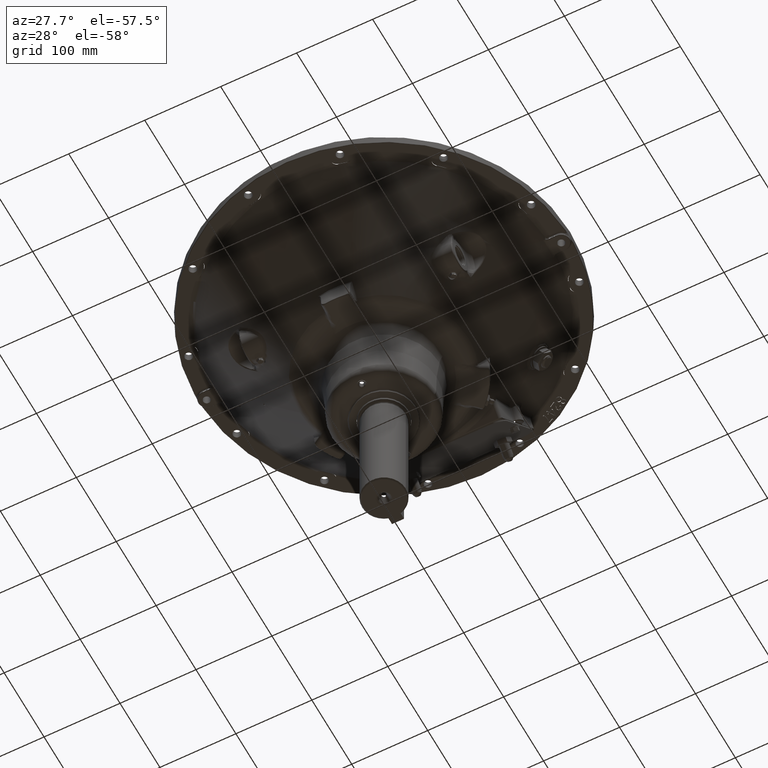
[diagram: clean part render]
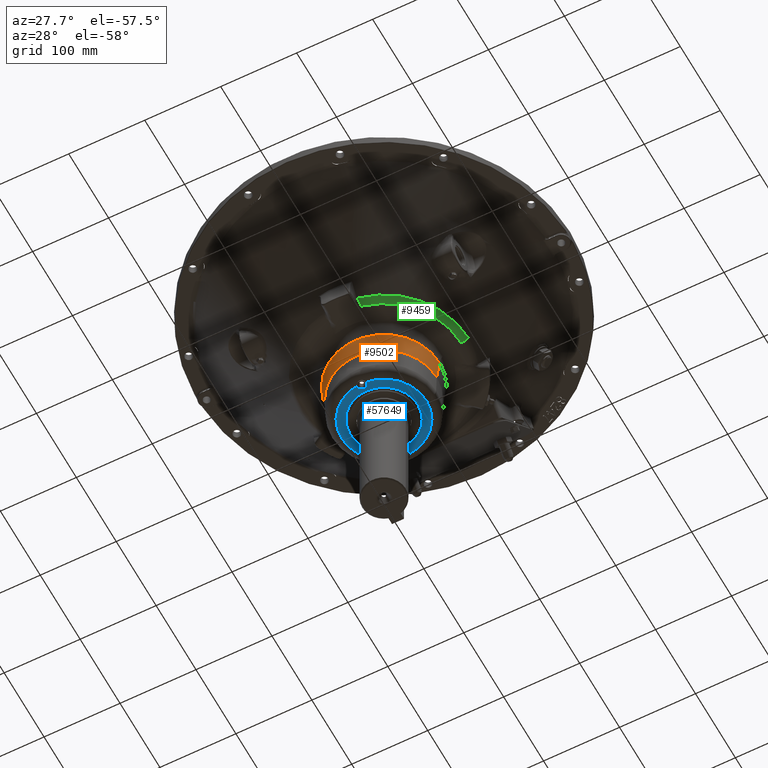
[diagram: same view with three faces highlighted in distinct colors, each labeled with its STEP entity id]
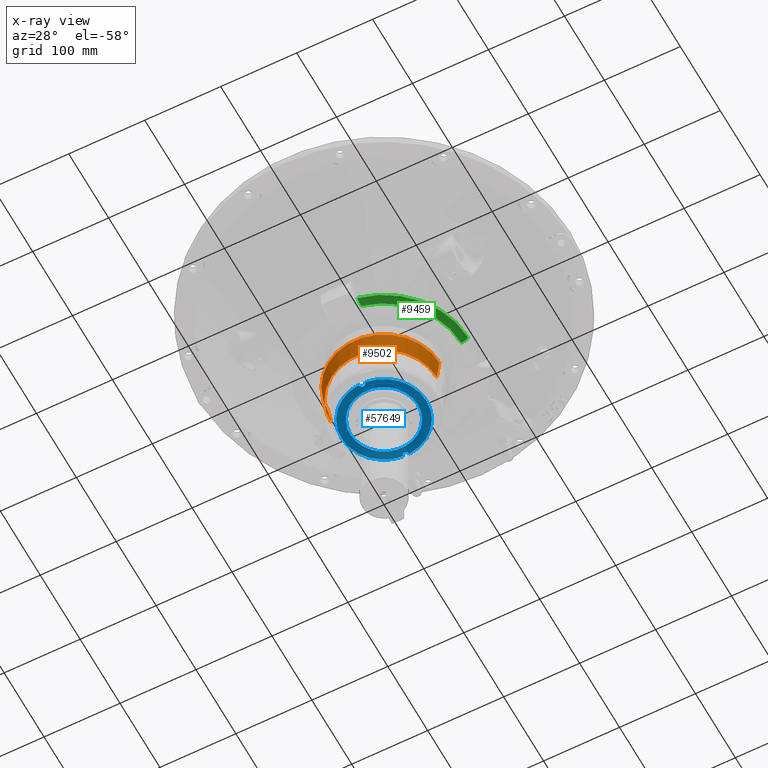
[diagram: x-ray of the same camera — body ghosted, the three highlighted faces saturated]
A machine part, auxiliary view with three faces highlighted in distinct colors.
The next image is the same camera in x-ray (body ghosted, the three faces saturated) — at least one of them is partly hidden behind the body in this view.
Their STEP definitions:

[orange] entity #9502 — the highlighted conical surface has half-angle 7.326 deg.
#950 = CIRCLE ( 'NONE', #20918, 73.02500000000003400 ) ;
#4420 = VECTOR ( 'NONE', #59945, 1000.000000000000000 ) ;
#4422 = LINE ( 'NONE', #59942, #4420 ) ;
#4427 = LINE ( 'NONE', #60132, #4429 ) ;
#4429 = VECTOR ( 'NONE', #60137, 1000.000000000000000 ) ;
#4436 = CIRCLE ( 'NONE', #19885, 69.38452087200465700 ) ;
#9251 = CONICAL_SURFACE ( 'NONE', #53688, 69.34332391276757300, 0.1278548410188706200 ) ;
#9335 = FACE_OUTER_BOUND ( 'NONE', #41876, .T. ) ;
#9502 = ADVANCED_FACE ( 'NONE', ( #9335 ), #9251, .T. ) ;
#14308 = ORIENTED_EDGE ( 'NONE', *, *, #64652, .F. ) ;
#14438 = ORIENTED_EDGE ( 'NONE', *, *, #65061, .T. ) ;
#14536 = ORIENTED_EDGE ( 'NONE', *, *, #65054, .F. ) ;
#14588 = ORIENTED_EDGE ( 'NONE', *, *, #65058, .T. ) ;
#19885 = AXIS2_PLACEMENT_3D ( 'NONE', #60155, #60159, #60161 ) ;
#20918 = AXIS2_PLACEMENT_3D ( 'NONE', #72653, #72452, #71545 ) ;
#21818 = VERTEX_POINT ( 'NONE', #26635 ) ;
#21820 = VERTEX_POINT ( 'NONE', #26637 ) ;
#21821 = VERTEX_POINT ( 'NONE', #26638 ) ;
#22159 = VERTEX_POINT ( 'NONE', #26225 ) ;
#26225 = CARTESIAN_POINT ( 'NONE',  ( -73.02500000000004800, 2.208934655888544500E-014, -158.6863275827594700 ) ) ;
#26635 = CARTESIAN_POINT ( 'NONE',  ( 69.38452087200464300, 3.001860500194114000E-014, -187.0045410046340900 ) ) ;
#26637 = CARTESIAN_POINT ( 'NONE',  ( -69.38452087200467100, 2.696091424786581900E-014, -187.0045410046340900 ) ) ;
#26638 = CARTESIAN_POINT ( 'NONE',  ( 73.02499999999999100, 2.530746876409969100E-014, -158.6863275827594700 ) ) ;
#41876 = EDGE_LOOP ( 'NONE', ( #14536, #14438, #14588, #14308 ) ) ;
#53688 = AXIS2_PLACEMENT_3D ( 'NONE', #66854, #66838, #66499 ) ;
#59942 = CARTESIAN_POINT ( 'NONE',  ( -69.34332391276760200, 2.353479806802298000E-014, -187.3250000000000700 ) ) ;
#59945 = DIRECTION ( 'NONE',  ( -0.1275067880803362500, -5.006004735048425700E-017, 0.9918376979090057800 ) ) ;
#60132 = CARTESIAN_POINT ( 'NONE',  ( 69.34332391276754500, 2.659067332262128600E-014, -187.3250000000000700 ) ) ;
#60137 = DIRECTION ( 'NONE',  ( 0.1275067880803361900, -4.444097955128019200E-017, 0.9918376979090057800 ) ) ;
#60155 = CARTESIAN_POINT ( 'NONE',  ( 0.0000000000000000000, 6.938893903907228400E-015, -187.0045410046340900 ) ) ;
#60159 = DIRECTION ( 'NONE',  ( -2.775557561562890100E-017, -5.551115123125780200E-017, 1.000000000000000000 ) ) ;
#60161 = DIRECTION ( 'NONE',  ( 1.000000000000000000, 8.326672684688666700E-017, 0.0000000000000000000 ) ) ;
#64652 = EDGE_CURVE ( 'NONE', #22159, #21821, #950, .T. ) ;
#65054 = EDGE_CURVE ( 'NONE', #21820, #22159, #4422, .T. ) ;
#65058 = EDGE_CURVE ( 'NONE', #21818, #21821, #4427, .T. ) ;
#65061 = EDGE_CURVE ( 'NONE', #21820, #21818, #4436, .T. ) ;
#66499 = DIRECTION ( 'NONE',  ( 1.000000000000000000, 8.326672684688666700E-017, 0.0000000000000000000 ) ) ;
#66838 = DIRECTION ( 'NONE',  ( -2.775557561562890100E-017, -5.551115123125780200E-017, 1.000000000000000000 ) ) ;
#66854 = CARTESIAN_POINT ( 'NONE',  ( -2.775557561562891400E-014, 2.081668171172168500E-014, -187.3250000000000700 ) ) ;
#71545 = DIRECTION ( 'NONE',  ( 1.000000000000000000, 8.326672684688667900E-017, 0.0000000000000000000 ) ) ;
#72452 = DIRECTION ( 'NONE',  ( -2.775557561562890100E-017, -5.551115123125780200E-017, 1.000000000000000000 ) ) ;
#72653 = CARTESIAN_POINT ( 'NONE',  ( 0.0000000000000000000, 0.0000000000000000000, -158.6863275827594700 ) ) ;

[blue] entity #57649 — the highlighted planar face has unit normal (0, -0, 1).
#4485 = CIRCLE ( 'NONE', #19805, 55.89070773929449100 ) ;
#4490 = CIRCLE ( 'NONE', #19798, 55.89070773929449100 ) ;
#4542 = CIRCLE ( 'NONE', #19719, 44.45108836615853700 ) ;
#4548 = CIRCLE ( 'NONE', #19708, 55.89070773929449100 ) ;
#13229 = CIRCLE ( 'NONE', #21333, 44.45108836615853700 ) ;
#13245 = CIRCLE ( 'NONE', #21331, 55.89070773929449100 ) ;
#13261 = CIRCLE ( 'NONE', #21313, 3.968749999999997300 ) ;
#13301 = CIRCLE ( 'NONE', #21296, 3.968749999999997300 ) ;
#13547 = ORIENTED_EDGE ( 'NONE', *, *, #65142, .F. ) ;
#13599 = ORIENTED_EDGE ( 'NONE', *, *, #64328, .T. ) ;
#13743 = ORIENTED_EDGE ( 'NONE', *, *, #65232, .T. ) ;
#13744 = ORIENTED_EDGE ( 'NONE', *, *, #65237, .F. ) ;
#14157 = ORIENTED_EDGE ( 'NONE', *, *, #64334, .F. ) ;
#14174 = ORIENTED_EDGE ( 'NONE', *, *, #65138, .F. ) ;
#14209 = ORIENTED_EDGE ( 'NONE', *, *, #64390, .F. ) ;
#14246 = ORIENTED_EDGE ( 'NONE', *, *, #64351, .F. ) ;
#19708 = AXIS2_PLACEMENT_3D ( 'NONE', #37574, #37557, #37559 ) ;
#19719 = AXIS2_PLACEMENT_3D ( 'NONE', #37453, #37452, #37451 ) ;
#19798 = AXIS2_PLACEMENT_3D ( 'NONE', #38821, #38835, #38834 ) ;
#19805 = AXIS2_PLACEMENT_3D ( 'NONE', #38784, #38808, #38811 ) ;
#21296 = AXIS2_PLACEMENT_3D ( 'NONE', #62956, #62924, #62922 ) ;
#21313 = AXIS2_PLACEMENT_3D ( 'NONE', #63177, #63370, #63371 ) ;
#21331 = AXIS2_PLACEMENT_3D ( 'NONE', #63238, #63278, #63314 ) ;
#21333 = AXIS2_PLACEMENT_3D ( 'NONE', #63305, #63354, #63435 ) ;
#21687 = VERTEX_POINT ( 'NONE', #25647 ) ;
#21691 = VERTEX_POINT ( 'NONE', #25645 ) ;
#21826 = VERTEX_POINT ( 'NONE', #26553 ) ;
#21827 = VERTEX_POINT ( 'NONE', #26554 ) ;
#21847 = VERTEX_POINT ( 'NONE', #26516 ) ;
#21848 = VERTEX_POINT ( 'NONE', #26517 ) ;
#21852 = VERTEX_POINT ( 'NONE', #26525 ) ;
#22172 = VERTEX_POINT ( 'NONE', #26235 ) ;
#23610 = AXIS2_PLACEMENT_3D ( 'NONE', #28814, #29141, #29167 ) ;
#25645 = CARTESIAN_POINT ( 'NONE',  ( 3.964321417004007300, -55.74993602957687200, -228.6000000000000200 ) ) ;
#25647 = CARTESIAN_POINT ( 'NONE',  ( -3.964321417004007300, -55.74993602957691500, -228.6000000000000800 ) ) ;
#26235 = CARTESIAN_POINT ( 'NONE',  ( 44.45108836615852300, -1.382218603189557500E-014, -228.6000000000000800 ) ) ;
#26516 = CARTESIAN_POINT ( 'NONE',  ( 55.89070773929442700, -1.394772006164149300E-015, -228.6000000000000200 ) ) ;
#26517 = CARTESIAN_POINT ( 'NONE',  ( -55.89070773929448400, -4.137547782321696500E-015, -228.6000000000000200 ) ) ;
#26525 = CARTESIAN_POINT ( 'NONE',  ( -3.964321417003979800, 55.74993602957687200, -228.6000000000000500 ) ) ;
#26553 = CARTESIAN_POINT ( 'NONE',  ( -44.45108836615855100, -1.578109098933584000E-014, -228.6000000000001100 ) ) ;
#26554 = CARTESIAN_POINT ( 'NONE',  ( 3.964321417004007300, 55.74993602957687200, -228.6000000000000800 ) ) ;
#28814 = CARTESIAN_POINT ( 'NONE',  ( -2.775557561562891400E-014, 55.89070773929448400, -228.6000000000000500 ) ) ;
#28815 = PLANE ( 'NONE',  #23610 ) ;
#29141 = DIRECTION ( 'NONE',  ( 4.622231866529360600E-033, -5.551115123125780200E-017, 1.000000000000000000 ) ) ;
#29167 = DIRECTION ( 'NONE',  ( 1.000000000000000000, 8.326672684688667900E-017, 0.0000000000000000000 ) ) ;
#37451 = DIRECTION ( 'NONE',  ( 1.000000000000000000, 8.326672684688664200E-017, 0.0000000000000000000 ) ) ;
#37452 = DIRECTION ( 'NONE',  ( -2.775557561562890100E-017, -5.551115123125780200E-017, 1.000000000000000000 ) ) ;
#37453 = CARTESIAN_POINT ( 'NONE',  ( -2.775557561562891400E-014, 2.081668171172168500E-014, -228.6000000000000800 ) ) ;
#37557 = DIRECTION ( 'NONE',  ( -2.775557561562890100E-017, -5.551115123125780200E-017, 1.000000000000000000 ) ) ;
#37559 = DIRECTION ( 'NONE',  ( 1.000000000000000000, 8.326672684688675300E-017, 0.0000000000000000000 ) ) ;
#37574 = CARTESIAN_POINT ( 'NONE',  ( -2.775557561562891400E-014, 2.428612866367529900E-014, -228.6000000000000200 ) ) ;
#38784 = CARTESIAN_POINT ( 'NONE',  ( -2.775557561562891400E-014, 2.428612866367529900E-014, -228.6000000000000200 ) ) ;
#38808 = DIRECTION ( 'NONE',  ( -2.775557561562890100E-017, -5.551115123125780200E-017, 1.000000000000000000 ) ) ;
#38811 = DIRECTION ( 'NONE',  ( 1.000000000000000000, 8.326672684688675300E-017, 0.0000000000000000000 ) ) ;
#38821 = CARTESIAN_POINT ( 'NONE',  ( -2.775557561562891400E-014, 2.428612866367529900E-014, -228.6000000000000200 ) ) ;
#38834 = DIRECTION ( 'NONE',  ( 1.000000000000000000, 8.326672684688675300E-017, 0.0000000000000000000 ) ) ;
#38835 = DIRECTION ( 'NONE',  ( -2.775557561562890100E-017, -5.551115123125780200E-017, 1.000000000000000000 ) ) ;
#41882 = EDGE_LOOP ( 'NONE', ( #13744, #14209, #14174, #14157, #14246, #13547 ) ) ;
#41905 = EDGE_LOOP ( 'NONE', ( #13599, #13743 ) ) ;
#57649 = ADVANCED_FACE ( 'NONE', ( #67943, #68187 ), #28815, .F. ) ;
#62922 = DIRECTION ( 'NONE',  ( -1.000000000000000000, 0.0000000000000000000, 0.0000000000000000000 ) ) ;
#62924 = DIRECTION ( 'NONE',  ( 2.775557561562890100E-017, 5.551115123125780200E-017, -1.000000000000000000 ) ) ;
#62956 = CARTESIAN_POINT ( 'NONE',  ( 0.0000000000000000000, 55.56250000000000700, -228.6000000000000800 ) ) ;
#63177 = CARTESIAN_POINT ( 'NONE',  ( -2.775557561562891400E-014, -55.56250000000004300, -228.6000000000000800 ) ) ;
#63238 = CARTESIAN_POINT ( 'NONE',  ( -2.775557561562891400E-014, 2.428612866367529900E-014, -228.6000000000000200 ) ) ;
#63278 = DIRECTION ( 'NONE',  ( -2.775557561562890100E-017, -5.551115123125780200E-017, 1.000000000000000000 ) ) ;
#63305 = CARTESIAN_POINT ( 'NONE',  ( -2.775557561562891400E-014, 2.081668171172168500E-014, -228.6000000000000800 ) ) ;
#63314 = DIRECTION ( 'NONE',  ( 1.000000000000000000, 8.326672684688675300E-017, 0.0000000000000000000 ) ) ;
#63354 = DIRECTION ( 'NONE',  ( -2.775557561562890100E-017, -5.551115123125780200E-017, 1.000000000000000000 ) ) ;
#63370 = DIRECTION ( 'NONE',  ( 2.775557561562890100E-017, 5.551115123125780200E-017, -1.000000000000000000 ) ) ;
#63371 = DIRECTION ( 'NONE',  ( -1.000000000000000000, 0.0000000000000000000, 0.0000000000000000000 ) ) ;
#63435 = DIRECTION ( 'NONE',  ( 1.000000000000000000, 8.326672684688664200E-017, 0.0000000000000000000 ) ) ;
#64328 = EDGE_CURVE ( 'NONE', #22172, #21826, #13229, .T. ) ;
#64334 = EDGE_CURVE ( 'NONE', #21691, #21847, #13245, .T. ) ;
#64351 = EDGE_CURVE ( 'NONE', #21687, #21691, #13261, .T. ) ;
#64390 = EDGE_CURVE ( 'NONE', #21827, #21852, #13301, .T. ) ;
#65138 = EDGE_CURVE ( 'NONE', #21847, #21827, #4485, .T. ) ;
#65142 = EDGE_CURVE ( 'NONE', #21848, #21687, #4490, .T. ) ;
#65232 = EDGE_CURVE ( 'NONE', #21826, #22172, #4542, .T. ) ;
#65237 = EDGE_CURVE ( 'NONE', #21852, #21848, #4548, .T. ) ;
#67943 = FACE_BOUND ( 'NONE', #41905, .T. ) ;
#68187 = FACE_OUTER_BOUND ( 'NONE', #41882, .T. ) ;

[green] entity #9459 — the highlighted toroidal blend (fillet) surface has major radius 101.56 mm and minor (blend) radius 12.7 mm.
#4368 = CIRCLE ( 'NONE', #19988, 110.9233195292227400 ) ;
#4439 = CIRCLE ( 'NONE', #19867, 101.5598973517341500 ) ;
#9459 = ADVANCED_FACE ( 'NONE', ( #56925 ), #56931, .T. ) ;
#13280 = CIRCLE ( 'NONE', #21301, 12.69999999999998900 ) ;
#14778 = ORIENTED_EDGE ( 'NONE', *, *, #64371, .T. ) ;
#14786 = ORIENTED_EDGE ( 'NONE', *, *, #65064, .T. ) ;
#15364 = DIRECTION ( 'NONE',  ( 1.000000000000000000, 8.326672684688669100E-017, 2.775557561562890400E-017 ) ) ;
#15375 = DIRECTION ( 'NONE',  ( -2.775557561562890100E-017, -5.551115123125780200E-017, 1.000000000000000000 ) ) ;
#15376 = CARTESIAN_POINT ( 'NONE',  ( 0.0000000000000000000, 6.938893903907228400E-015, -123.8250000000000600 ) ) ;
#19867 = AXIS2_PLACEMENT_3D ( 'NONE', #60215, #60219, #60222 ) ;
#19988 = AXIS2_PLACEMENT_3D ( 'NONE', #58413, #58414, #58415 ) ;
#21301 = AXIS2_PLACEMENT_3D ( 'NONE', #63036, #63030, #63031 ) ;
#21746 = VERTEX_POINT ( 'NONE', #26528 ) ;
#21819 = VERTEX_POINT ( 'NONE', #26636 ) ;
#22184 = VERTEX_POINT ( 'NONE', #26160 ) ;
#22193 = VERTEX_POINT ( 'NONE', #26109 ) ;
#26109 = CARTESIAN_POINT ( 'NONE',  ( 22.22608836615851000, -99.09800071663643500, -136.5250000000000300 ) ) ;
#26160 = CARTESIAN_POINT ( 'NONE',  ( 101.5598973517340200, 1.637592342168964000E-014, -136.5250000000000600 ) ) ;
#26528 = CARTESIAN_POINT ( 'NONE',  ( 110.9233195292227400, 1.665140108745037800E-014, -132.4049956367188900 ) ) ;
#26636 = CARTESIAN_POINT ( 'NONE',  ( 21.89880743035800500, -108.7401721927555200, -132.4049956367189200 ) ) ;
#41792 = EDGE_LOOP ( 'NONE', ( #48269, #14778, #47901, #14786 ) ) ;
#44244 = B_SPLINE_CURVE_WITH_KNOTS ( 'NONE', 3,
 ( #60156, #60183, #60185, #60188, #60190, #60193, #60195, #60198, #60200, #60203, #60205, #60208, #60210, #60213 ),
 .UNSPECIFIED., .F., .F.,
 ( 4, 2, 2, 2, 2, 2, 4 ),
 ( 0.0000000000000000000, 0.001356734724707684600, 0.002713469449415369100, 0.005426938898830738200, 0.006783673623538422800, 0.008140408348246105600, 0.01085387779766145900 ),
 .UNSPECIFIED. ) ;
#47901 = ORIENTED_EDGE ( 'NONE', *, *, #64963, .F. ) ;
#48269 = ORIENTED_EDGE ( 'NONE', *, *, #65065, .T. ) ;
#53307 = AXIS2_PLACEMENT_3D ( 'NONE', #15376, #15375, #15364 ) ;
#56925 = FACE_OUTER_BOUND ( 'NONE', #41792, .T. ) ;
#56931 = TOROIDAL_SURFACE ( 'NONE', #53307, 101.5598973517340800, 12.69999999999998900 ) ;
#58413 = CARTESIAN_POINT ( 'NONE',  ( -2.775557561562891400E-014, 0.0000000000000000000, -132.4049956367188900 ) ) ;
#58414 = DIRECTION ( 'NONE',  ( -2.775557561562890100E-017, -5.551115123125780200E-017, 1.000000000000000000 ) ) ;
#58415 = DIRECTION ( 'NONE',  ( 1.000000000000000000, 8.326672684688667900E-017, 0.0000000000000000000 ) ) ;
#60156 = CARTESIAN_POINT ( 'NONE',  ( 21.89880743035800500, -108.7401721927555200, -132.4049956367189200 ) ) ;
#60183 = CARTESIAN_POINT ( 'NONE',  ( 21.90161948581872800, -108.4302527142210700, -132.7359508793937000 ) ) ;
#60185 = CARTESIAN_POINT ( 'NONE',  ( 21.90581914763031800, -108.1038459979485000, -133.0490563197196000 ) ) ;
#60188 = CARTESIAN_POINT ( 'NONE',  ( 21.91705049204241000, -107.4185536115244400, -133.6401025604882600 ) ) ;
#60190 = CARTESIAN_POINT ( 'NONE',  ( 21.92410063535926000, -107.0593796602834400, -133.9179244773259500 ) ) ;
#60193 = CARTESIAN_POINT ( 'NONE',  ( 21.94920438089308200, -105.9524315763394800, -134.6856150185557200 ) ) ;
#60195 = CARTESIAN_POINT ( 'NONE',  ( 21.97125208731460700, -105.1697258311373800, -135.1157509805972300 ) ) ;
#60198 = CARTESIAN_POINT ( 'NONE',  ( 22.01272608762451500, -103.9300087703310000, -135.6410872335124500 ) ) ;
#60200 = CARTESIAN_POINT ( 'NONE',  ( 22.02806303511150100, -103.5031957675347200, -135.7967575536716300 ) ) ;
#60203 = CARTESIAN_POINT ( 'NONE',  ( 22.06116466433634900, -102.6418384079554900, -136.0620275282361100 ) ) ;
#60205 = CARTESIAN_POINT ( 'NONE',  ( 22.07890866813634300, -102.2074222491269600, -136.1719580321890500 ) ) ;
#60208 = CARTESIAN_POINT ( 'NONE',  ( 22.13572340602819100, -100.8933548341042900, -136.4359919085476600 ) ) ;
#60210 = CARTESIAN_POINT ( 'NONE',  ( 22.17834647920029300, -100.0029938707291000, -136.5250000000000300 ) ) ;
#60213 = CARTESIAN_POINT ( 'NONE',  ( 22.22608836615851000, -99.09800071663643500, -136.5250000000000300 ) ) ;
#60215 = CARTESIAN_POINT ( 'NONE',  ( -5.551115123125782700E-014, 1.214306433183765000E-014, -136.5250000000000600 ) ) ;
#60219 = DIRECTION ( 'NONE',  ( -2.775557561562890100E-017, -5.551115123125780200E-017, 1.000000000000000000 ) ) ;
#60222 = DIRECTION ( 'NONE',  ( 1.000000000000000000, 8.326672684688666700E-017, 0.0000000000000000000 ) ) ;
#63030 = DIRECTION ( 'NONE',  ( 8.326672684688667900E-017, -1.000000000000000000, -5.551115123125780200E-017 ) ) ;
#63031 = DIRECTION ( 'NONE',  ( 1.000000000000000000, 8.326672684688661700E-017, 0.0000000000000000000 ) ) ;
#63036 = CARTESIAN_POINT ( 'NONE',  ( 101.5598973517341500, 1.539545413529192400E-014, -123.8250000000000600 ) ) ;
#64371 = EDGE_CURVE ( 'NONE', #22184, #21746, #13280, .T. ) ;
#64963 = EDGE_CURVE ( 'NONE', #21819, #21746, #4368, .T. ) ;
#65064 = EDGE_CURVE ( 'NONE', #21819, #22193, #44244, .T. ) ;
#65065 = EDGE_CURVE ( 'NONE', #22193, #22184, #4439, .T. ) ;